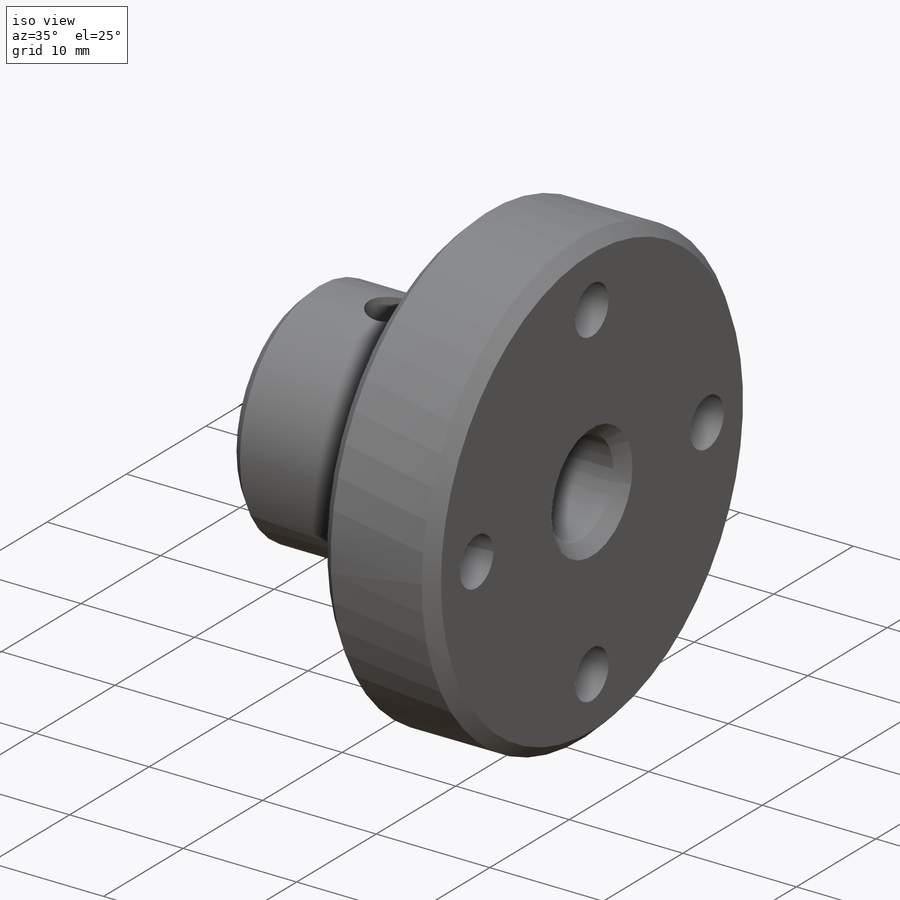
[diagram: iso view]
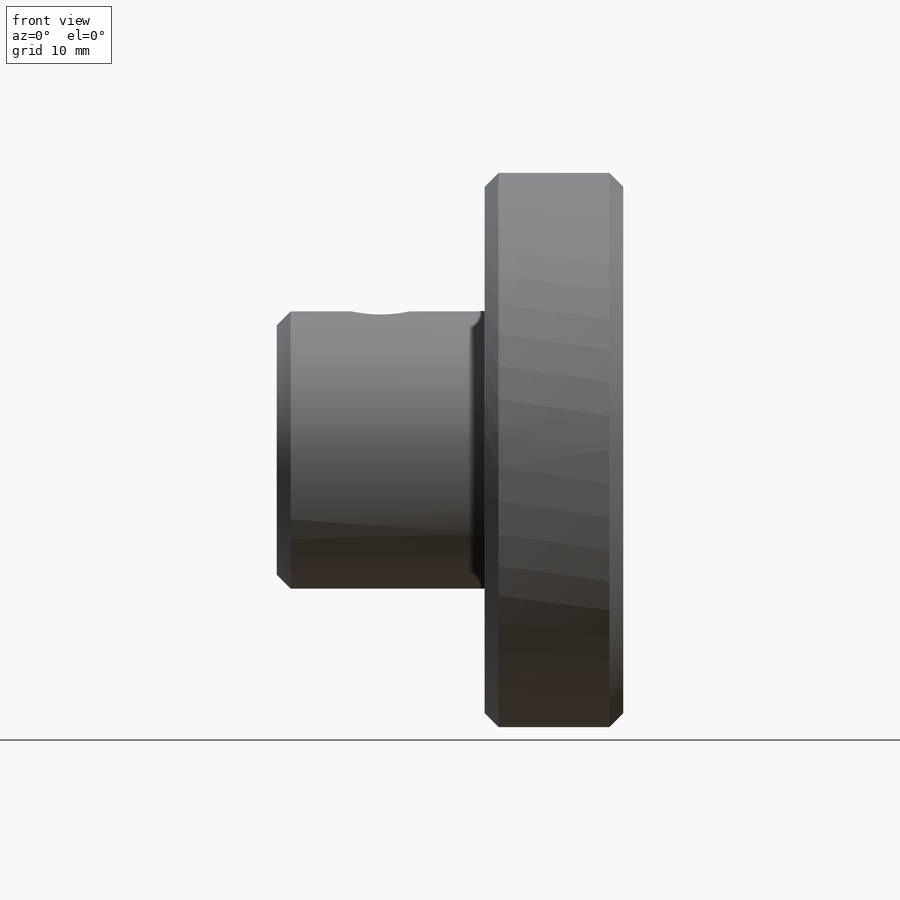
[diagram: front view]
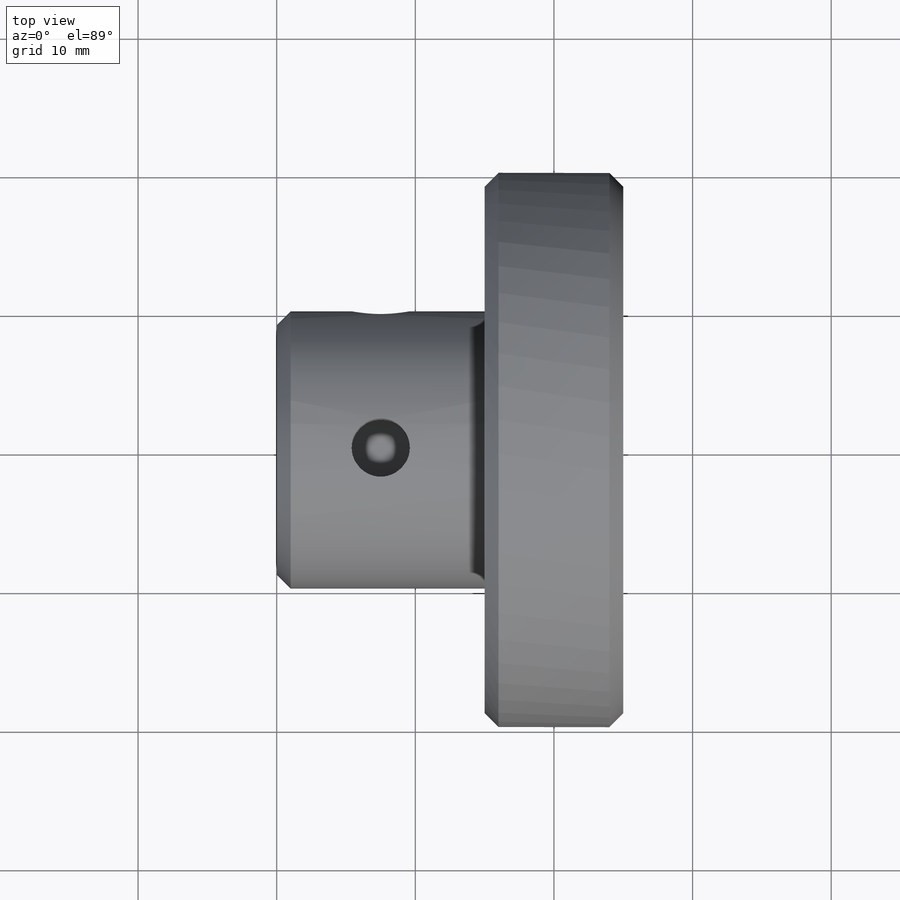
[diagram: top view]
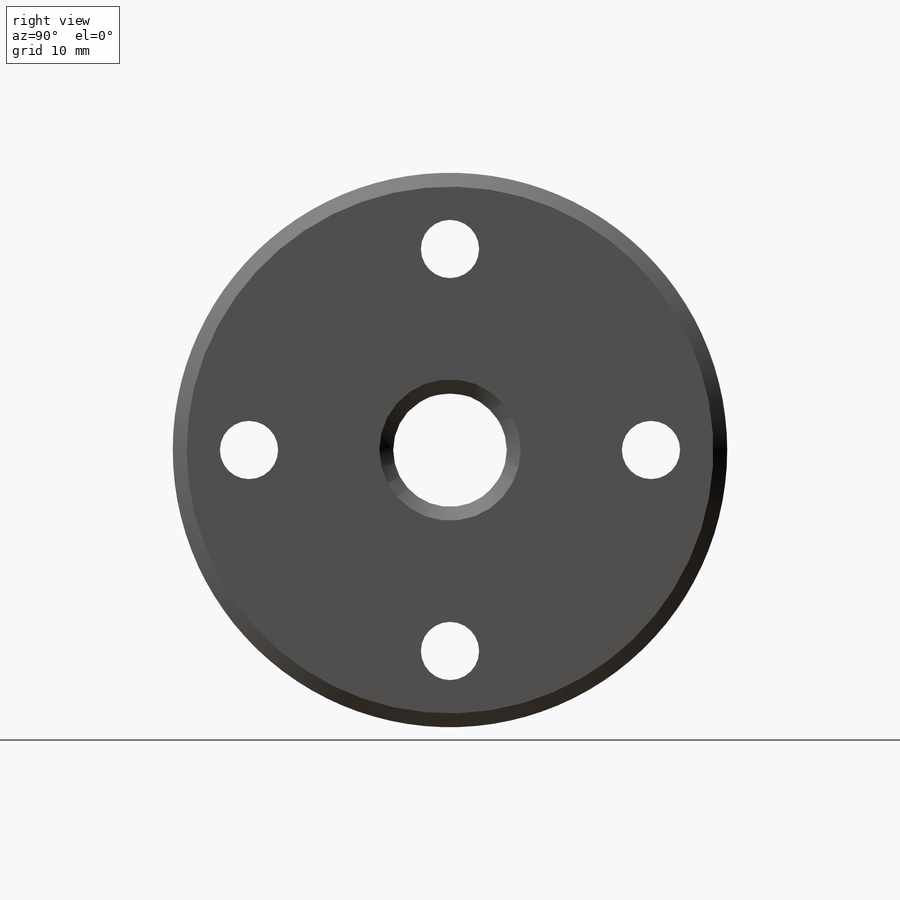
[diagram: right view]
SOLIDWORKS PART (.sldprt)
format: sldprt  version: not decoded by parser v0  size: 260,096 bytes
history: native  units: mm
features: sketch x5, hole x2, pattern_circular x2, material x1, revolve x1, chamfer x1 (+13 scaffold rows collapsed)
feature tree (25):
  scaffold x13  (default folders/planes/origin — collapsed)
  material  "6061-T6 (SS)"
  sketch  "Sketch1"  dims[D1=25.0mm D2=8.2mm D3=20.0mm D4=40.0mm D5=10.0mm]
  revolve  "Revolve1"  Angle=360deg
  hole  "M5x0.8 Tapped Hole1"  Diameter=4.2mm Depth=25mm
  sketch  "Sketch3"  dims[D1=14.5mm]
  sketch  "Sketch2"  dims[hole-wizard template sketch: 60 standard entries collapsed; hole parameters kept: c18.Thru Tap Drill Depth=25.0mm]
  pattern_circular  "CirPattern1"  Count=4 Angle=360deg
  hole  "M5x0.8 Tapped Hole2"  Diameter=4.2mm Depth=20mm
  sketch  "Sketch7"  dims[D1=7.5mm]
  sketch  "Sketch6"  dims[hole-wizard template sketch: 60 standard entries collapsed; hole parameters kept: c18.Thru Tap Drill Depth=20.0mm]
  pattern_circular  "CirPattern2"  Count=2 Angle=90deg
  chamfer  "Chamfer1"  Distance=1mm Angle=45deg
decode coverage: 11 of 11 modeling features carry decoded parameters
note: ~ marks probable driven/reference dimensions
note: suppression state not decoded; provenance and decode notes live in map.json
